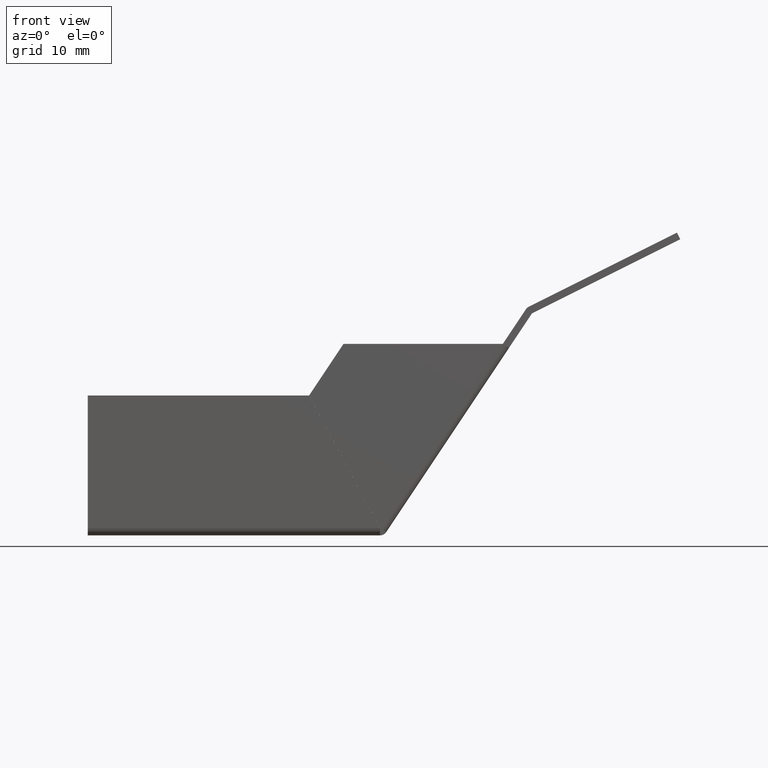
[diagram: clean part render]
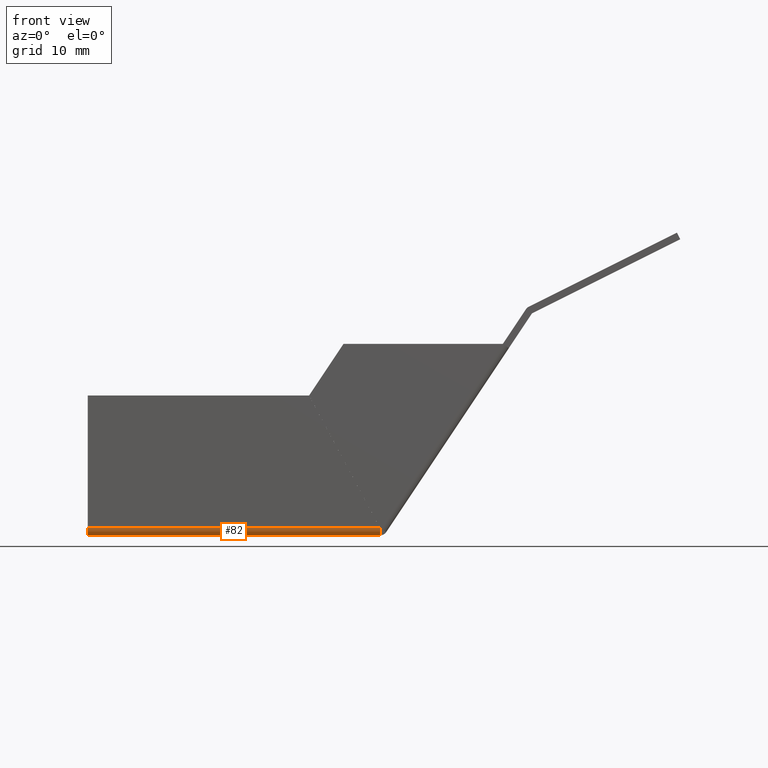
[diagram: same view with one face highlighted and labeled with its STEP entity id]
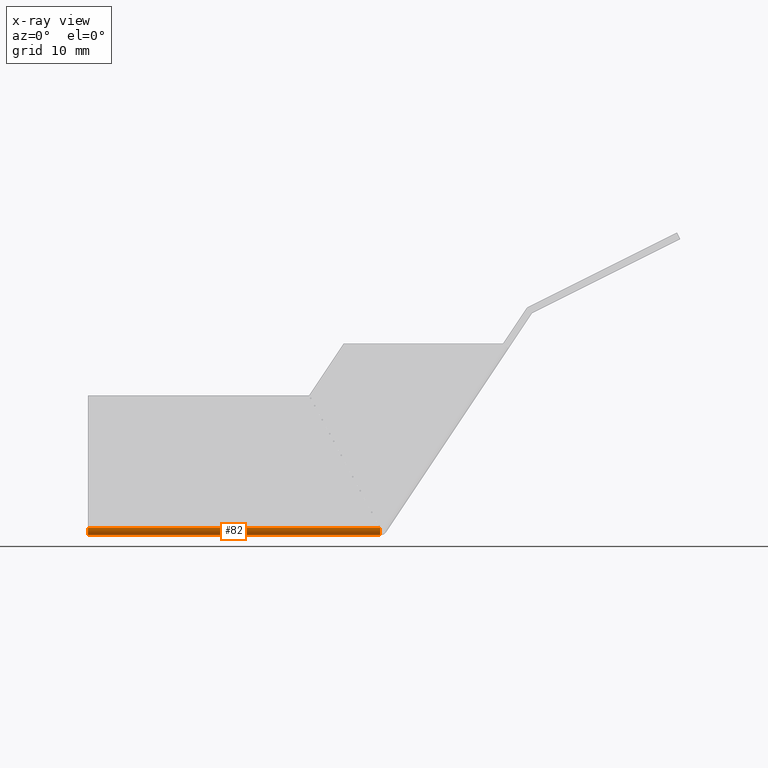
[diagram: x-ray of the same camera — body ghosted, the highlighted face saturated]
A machine part, front view. The second image highlights one B-rep face of the part: STEP entity #82.
The next image is the same camera in x-ray: the body ghosted, the highlighted face saturated — about 0% of this face is hidden behind the body in this view.
In plain terms, the highlighted cylindrical surface (edge-blend (fillet) strip) has radius 1.002 mm, axis along (1, 0, 0).
Its self-contained STEP definition (entity closure, byte-faithful):
#82 = ADVANCED_FACE( '', ( #188 ), #189, .T. );
#188 = FACE_OUTER_BOUND( '', #334, .T. );
#189 = CYLINDRICAL_SURFACE( '', #335, 1.00200000000000 );
#334 = EDGE_LOOP( '', ( #516, #517, #518, #519 ) );
#335 = AXIS2_PLACEMENT_3D( '', #520, #521, #522 );
#516 = ORIENTED_EDGE( '', *, *, #808, .F. );
#517 = ORIENTED_EDGE( '', *, *, #809, .T. );
#518 = ORIENTED_EDGE( '', *, *, #810, .F. );
#519 = ORIENTED_EDGE( '', *, *, #811, .F. );
#520 = CARTESIAN_POINT( '', ( 0.000000000000000, -39.9980000000000, 1.00200000000000 ) );
#521 = DIRECTION( '', ( 1.00000000000000, 6.12323399573677E-017, 7.49879891330929E-033 ) );
#522 = DIRECTION( '', ( -4.10536659470161E-048, -1.22464679914735E-016, 1.00000000000000 ) );
#808 = EDGE_CURVE( '', #914, #958, #959, .T. );
#809 = EDGE_CURVE( '', #914, #960, #961, .F. );
#810 = EDGE_CURVE( '', #962, #960, #963, .T. );
#811 = EDGE_CURVE( '', #958, #962, #964, .T. );
#914 = VERTEX_POINT( '', #1090 );
#958 = VERTEX_POINT( '', #1163 );
#959 = CIRCLE( '', #1164, 1.00200000000000 );
#960 = VERTEX_POINT( '', #1165 );
#961 = LINE( '', #1166, #1167 );
#962 = VERTEX_POINT( '', #1168 );
#963 = B_SPLINE_CURVE_WITH_KNOTS( '', 3, ( #1169, #1170, #1171, #1172, #1173, #1174, #1175, #1176, #1177, #1178 ), .UNSPECIFIED., .F., .F., ( 4, 2, 2, 2, 4 ), ( 0.000000000000000, 0.250000000000000, 0.500000000000000, 0.750000000000000, 1.00000000000000 ), .UNSPECIFIED. );
#964 = LINE( '', #1179, #1180 );
#1090 = CARTESIAN_POINT( '', ( -9.61835346861352E-020, -39.9980000000000, 1.50275930222718E-032 ) );
#1163 = CARTESIAN_POINT( '', ( 6.12586211025963E-017, -41.0000000000000, 1.00200000000062 ) );
#1164 = AXIS2_PLACEMENT_3D( '', #1349, #1350, #1351 );
#1165 = CARTESIAN_POINT( '', ( 39.4637458739951, -39.9980000000007, -7.62681130457355E-029 ) );
#1166 = CARTESIAN_POINT( '', ( -1.09893488159719E-017, -39.9980000000000, 0.000000000000000 ) );
#1167 = VECTOR( '', #1352, 1000.00000000000 );
#1168 = CARTESIAN_POINT( '', ( 39.4626755064781, -41.0000000000000, 1.00200000000062 ) );
#1169 = CARTESIAN_POINT( '', ( 39.4626755064781, -41.0000000000000, 1.00200000000062 ) );
#1170 = CARTESIAN_POINT( '', ( 39.4627647190334, -41.0000000000000, 0.870816064155358 ) );
#1171 = CARTESIAN_POINT( '', ( 39.4628539010642, -40.9739202003628, 0.739727601897772 ) );
#1172 = CARTESIAN_POINT( '', ( 39.4630322956503, -40.8735343827903, 0.497374799643744 ) );
#1173 = CARTESIAN_POINT( '', ( 39.4631214929435, -40.7992653969592, 0.386223407461425 ) );
#1174 = CARTESIAN_POINT( '', ( 39.4632998875296, -40.6137765925396, 0.200734603041618 ) );
#1175 = CARTESIAN_POINT( '', ( 39.4633890848227, -40.5026252003574, 0.126465617210364 ) );
#1176 = CARTESIAN_POINT( '', ( 39.4635674794089, -40.2602723981034, 0.0260797996374958 ) );
#1177 = CARTESIAN_POINT( '', ( 39.4636566610840, -40.1291833569834, 8.19639707027409E-014 ) );
#1178 = CARTESIAN_POINT( '', ( 39.4637458739951, -39.9980000000007, -7.62681130457355E-029 ) );
#1179 = CARTESIAN_POINT( '', ( 0.000000000000000, -41.0000000000000, 1.00200000000000 ) );
#1180 = VECTOR( '', #1353, 1000.00000000000 );
#1349 = CARTESIAN_POINT( '', ( -9.61835346861277E-020, -39.9980000000000, 1.00200000000000 ) );
#1350 = DIRECTION( '', ( -1.00000000000000, -6.12323399573677E-017, -7.49879891330929E-033 ) );
#1351 = DIRECTION( '', ( -4.10536659470161E-048, -1.22464679914735E-016, 1.00000000000000 ) );
#1352 = DIRECTION( '', ( -1.00000000000000, 0.000000000000000, 1.09893488159719E-017 ) );
#1353 = DIRECTION( '', ( 1.00000000000000, 0.000000000000000, 0.000000000000000 ) );